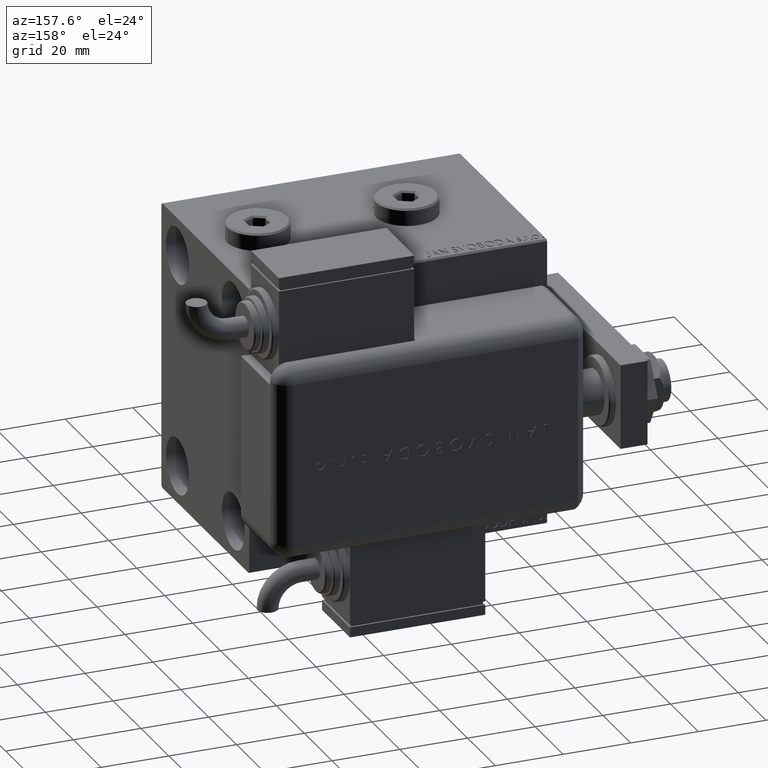
[diagram: clean part render]
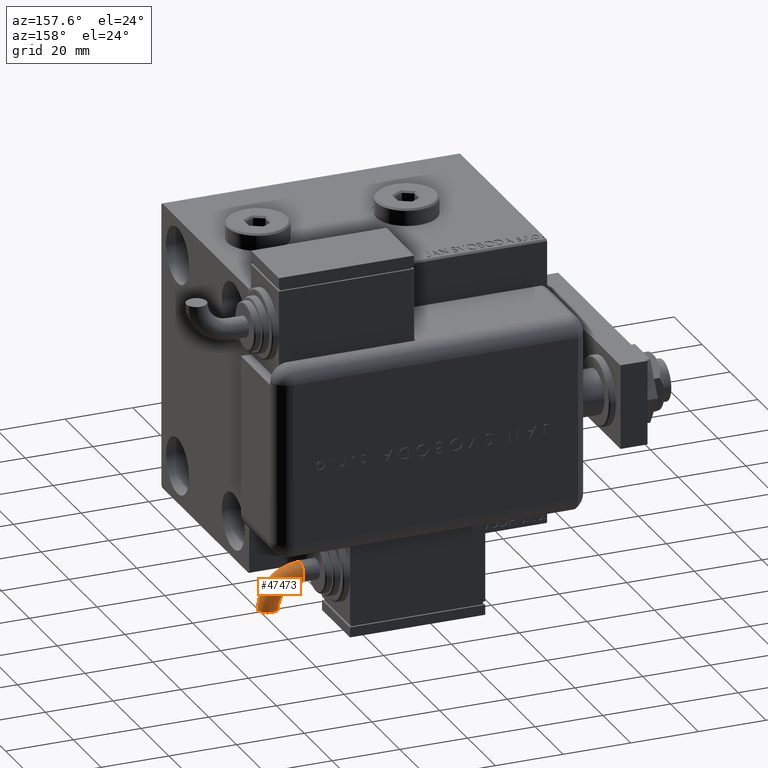
[diagram: same view with one face highlighted and labeled with its STEP entity id]
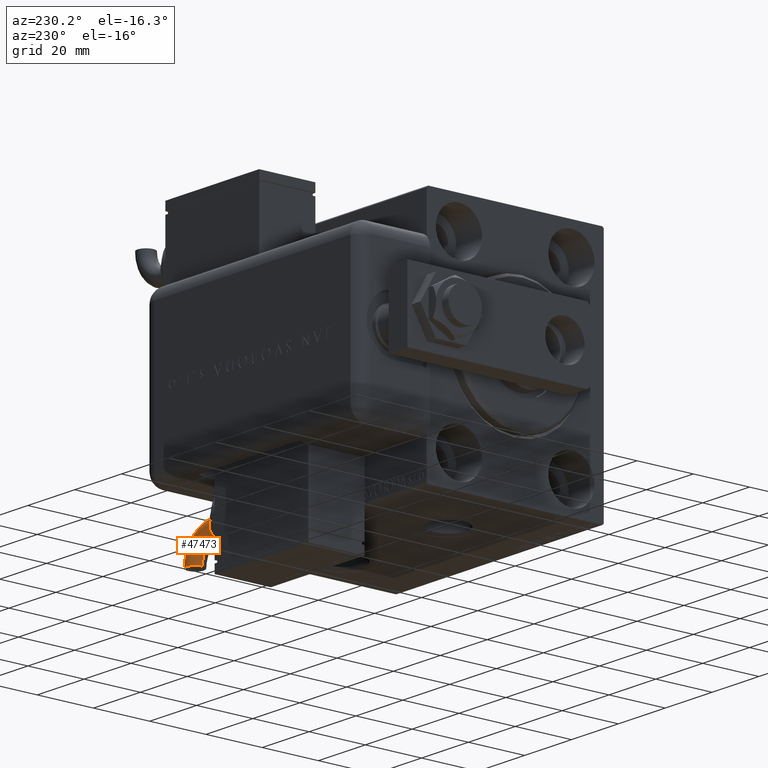
[diagram: same view with one face highlighted and labeled with its STEP entity id]
A machine part, auxiliary view. The second image highlights one B-rep face of the part: STEP entity #47473.
A second angle (auxiliary view) of the same face is appended — the face is thin or edge-on in the first view.
In plain terms, the highlighted toroidal blend (fillet) surface has major radius 9.5072 mm and minor (blend) radius 3 mm.
Its self-contained STEP definition (entity closure, byte-faithful):
#315 = CARTESIAN_POINT ( 'NONE',  ( -43.25922829597471519, -9.507304102202486007, 0.000000000000000000 ) ) ;
#4611 = DIRECTION ( 'NONE',  ( 1.000000000000000000, 0.000000000000000000, 0.000000000000000000 ) ) ;
#4719 = DIRECTION ( 'NONE',  ( -7.402363701065945741E-06, 0.9999999999726024713, 0.000000000000000000 ) ) ;
#5161 = DIRECTION ( 'NONE',  ( 0.000000000000000000, 0.000000000000000000, 1.000000000000000000 ) ) ;
#6011 = AXIS2_PLACEMENT_3D ( 'NONE', #42242, #46554, #4611 ) ;
#7948 = CIRCLE ( 'NONE', #42442, 12.50721151927396058 ) ;
#8010 = DIRECTION ( 'NONE',  ( 0.000000000000000000, 0.000000000000000000, 1.000000000000000000 ) ) ;
#8042 = AXIS2_PLACEMENT_3D ( 'NONE', #60722, #23423, #13259 ) ;
#8161 = EDGE_CURVE ( 'NONE', #9307, #36357, #32073, .T. ) ;
#8309 = DIRECTION ( 'NONE',  ( 1.000000000000000000, 0.000000000000000000, 0.000000000000000000 ) ) ;
#9307 = VERTEX_POINT ( 'NONE', #315 ) ;
#9949 = TOROIDAL_SURFACE ( 'NONE', #6011, 9.507211519273964129, 2.999999999999996891 ) ;
#10235 = CARTESIAN_POINT ( 'NONE',  ( -30.75201677704341918, -2.999999999999976463, -3.673940397442056910E-16 ) ) ;
#13259 = DIRECTION ( 'NONE',  ( -1.156482317317872908E-15, 1.000000000000000000, 0.000000000000000000 ) ) ;
#13670 = VERTEX_POINT ( 'NONE', #53083 ) ;
#16777 = ORIENTED_EDGE ( 'NONE', *, *, #55184, .F. ) ;
#17458 = EDGE_LOOP ( 'NONE', ( #16777, #52058, #46232, #46299, #44878 ) ) ;
#20540 = EDGE_CURVE ( 'NONE', #57351, #36357, #32241, .T. ) ;
#23411 = FACE_OUTER_BOUND ( 'NONE', #17458, .T. ) ;
#23423 = DIRECTION ( 'NONE',  ( 1.000000000000000000, 1.025520576932673761E-15, 0.000000000000000000 ) ) ;
#23958 = DIRECTION ( 'NONE',  ( 1.000000000000000000, 0.000000000000000000, 0.000000000000000000 ) ) ;
#27954 = CIRCLE ( 'NONE', #36810, 2.999999999999996003 ) ;
#29745 = VERTEX_POINT ( 'NONE', #46345 ) ;
#31202 = EDGE_CURVE ( 'NONE', #29745, #9307, #7948, .T. ) ;
#31313 = AXIS2_PLACEMENT_3D ( 'NONE', #36067, #8010, #8309 ) ;
#32073 = CIRCLE ( 'NONE', #50845, 2.999999999999996891 ) ;
#32241 = CIRCLE ( 'NONE', #31313, 6.507211519273966793 ) ;
#33286 = EDGE_CURVE ( 'NONE', #13670, #57351, #48398, .T. ) ;
#35526 = DIRECTION ( 'NONE',  ( -1.156482317317872908E-15, 1.000000000000000000, 0.000000000000000000 ) ) ;
#36067 = CARTESIAN_POINT ( 'NONE',  ( -30.75201677704342274, -9.507211519273942812, -3.673940397442055924E-16 ) ) ;
#36357 = VERTEX_POINT ( 'NONE', #41516 ) ;
#36810 = AXIS2_PLACEMENT_3D ( 'NONE', #53713, #45399, #35526 ) ;
#37723 = CARTESIAN_POINT ( 'NONE',  ( -40.25922829605691078, -9.507281895111381331, 0.000000000000000000 ) ) ;
#41516 = CARTESIAN_POINT ( 'NONE',  ( -37.25922829613910636, -9.507259688020280208, -3.673940397551225891E-16 ) ) ;
#42242 = CARTESIAN_POINT ( 'NONE',  ( -30.75201677704342274, -9.507211519273942812, 0.000000000000000000 ) ) ;
#42442 = AXIS2_PLACEMENT_3D ( 'NONE', #56643, #5161, #23958 ) ;
#44878 = ORIENTED_EDGE ( 'NONE', *, *, #33286, .F. ) ;
#45399 = DIRECTION ( 'NONE',  ( 1.000000000000000000, 1.025520576932673761E-15, 0.000000000000000000 ) ) ;
#46232 = ORIENTED_EDGE ( 'NONE', *, *, #8161, .T. ) ;
#46299 = ORIENTED_EDGE ( 'NONE', *, *, #20540, .F. ) ;
#46345 = CARTESIAN_POINT ( 'NONE',  ( -30.75201677704342629, 3.000000000000017319, 0.000000000000000000 ) ) ;
#46554 = DIRECTION ( 'NONE',  ( 0.000000000000000000, 0.000000000000000000, 1.000000000000000000 ) ) ;
#47473 = ADVANCED_FACE ( 'NONE', ( #23411 ), #9949, .T. ) ;
#47874 = DIRECTION ( 'NONE',  ( -0.9999999999726024713, -7.402363701169985951E-06, 0.000000000000000000 ) ) ;
#48398 = CIRCLE ( 'NONE', #8042, 2.999999999999996003 ) ;
#50845 = AXIS2_PLACEMENT_3D ( 'NONE', #37723, #4719, #47874 ) ;
#52058 = ORIENTED_EDGE ( 'NONE', *, *, #31202, .T. ) ;
#53083 = CARTESIAN_POINT ( 'NONE',  ( -30.75201677704342274, 2.081668171172168829E-14, 2.999999999999997335 ) ) ;
#53713 = CARTESIAN_POINT ( 'NONE',  ( -30.75201677704342274, 2.081668171172168513E-14, 0.000000000000000000 ) ) ;
#55184 = EDGE_CURVE ( 'NONE', #29745, #13670, #27954, .T. ) ;
#56643 = CARTESIAN_POINT ( 'NONE',  ( -30.75201677704342274, -9.507211519273942812, 0.000000000000000000 ) ) ;
#57351 = VERTEX_POINT ( 'NONE', #10235 ) ;
#60722 = CARTESIAN_POINT ( 'NONE',  ( -30.75201677704342274, 2.081668171172168513E-14, 0.000000000000000000 ) ) ;